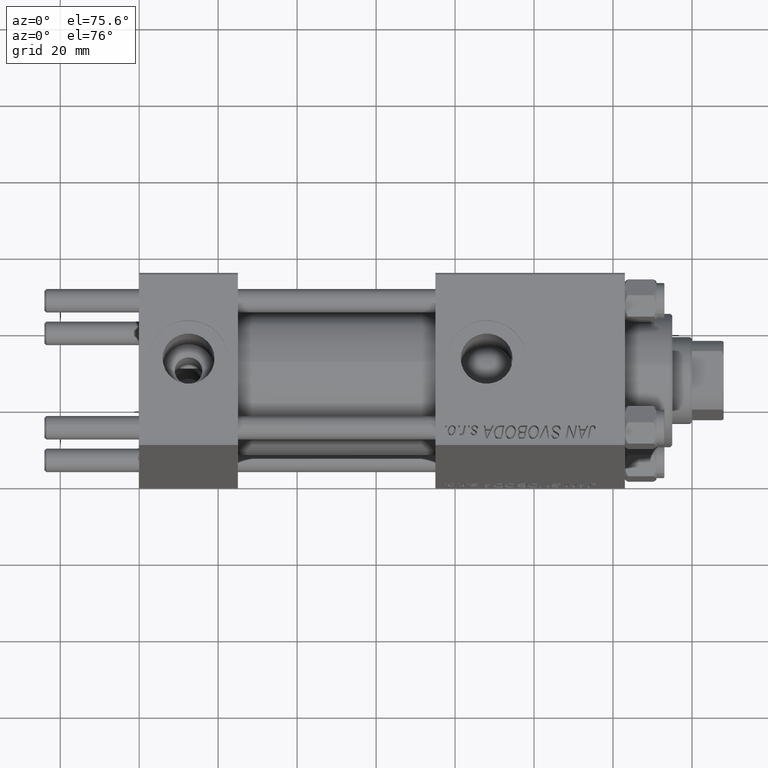
[diagram: clean part render]
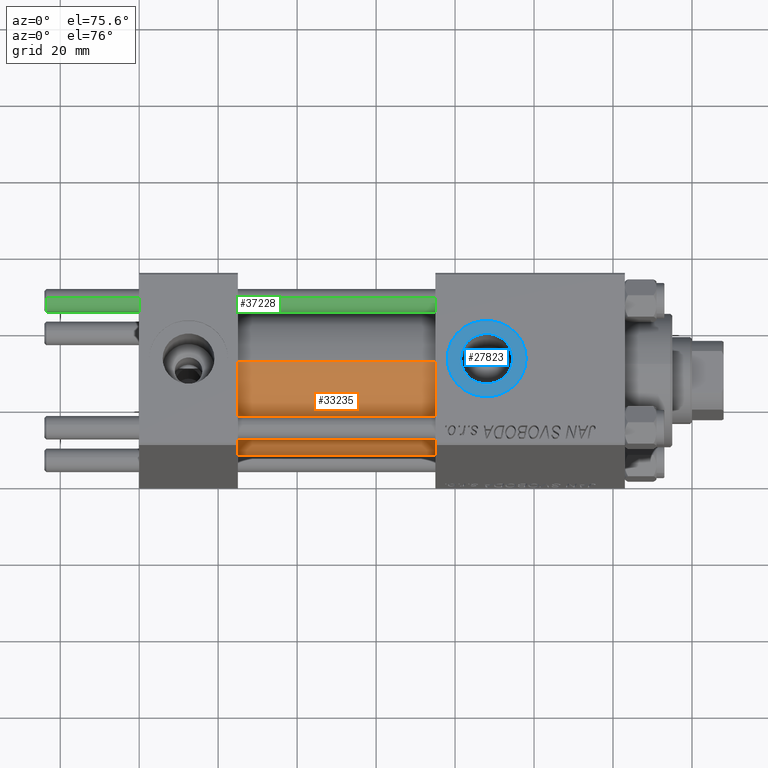
[diagram: same view with three faces highlighted in distinct colors, each labeled with its STEP entity id]
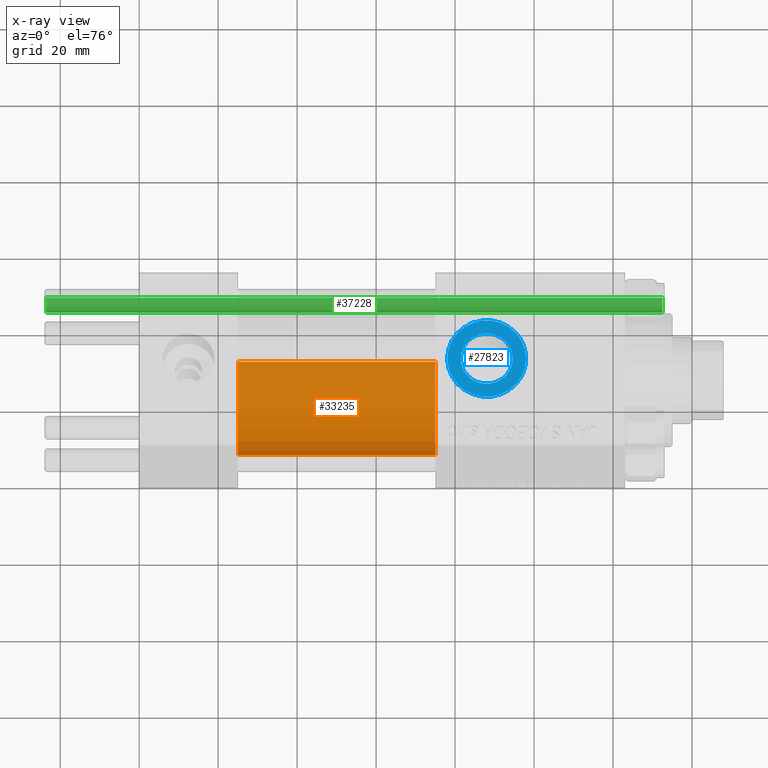
[diagram: x-ray of the same camera — body ghosted, the three highlighted faces saturated]
A machine part, auxiliary view with three faces highlighted in distinct colors.
The next image is the same camera in x-ray (body ghosted, the three faces saturated) — at least one of them is partly hidden behind the body in this view.
Their STEP definitions:

[orange] entity #33235 — the highlighted cylindrical surface (partial cylindrical patch) has radius 19 mm, axis along (-1, -0, -0).
#1293 = FACE_OUTER_BOUND ( 'NONE', #16891, .T. ) ;
#2273 = AXIS2_PLACEMENT_3D ( 'NONE', #21257, #4711, #28845 ) ;
#4245 = AXIS2_PLACEMENT_3D ( 'NONE', #37456, #41389, #22446 ) ;
#4711 = DIRECTION ( 'NONE',  ( -1.000000000000000000, -0.000000000000000000, -0.000000000000000000 ) ) ;
#4981 = CYLINDRICAL_SURFACE ( 'NONE', #2273, 19.00000000000000000 ) ;
#5444 = CARTESIAN_POINT ( 'NONE',  ( 75.00000000000001421, 0.000000000000000000, 0.000000000000000000 ) ) ;
#6064 = CARTESIAN_POINT ( 'NONE',  ( 75.00000000000001421, 0.000000000000000000, 19.00000000000000000 ) ) ;
#8062 = EDGE_CURVE ( 'NONE', #13216, #30739, #48617, .T. ) ;
#8562 = ORIENTED_EDGE ( 'NONE', *, *, #41206, .T. ) ;
#8734 = EDGE_CURVE ( 'NONE', #12951, #38926, #17674, .T. ) ;
#10637 = ORIENTED_EDGE ( 'NONE', *, *, #8734, .F. ) ;
#12951 = VERTEX_POINT ( 'NONE', #15720 ) ;
#13216 = VERTEX_POINT ( 'NONE', #35827 ) ;
#14475 = LINE ( 'NONE', #6064, #32554 ) ;
#15720 = CARTESIAN_POINT ( 'NONE',  ( 75.00000000000001421, 0.000000000000000000, 19.00000000000000000 ) ) ;
#16891 = EDGE_LOOP ( 'NONE', ( #47445, #10637, #8562, #19087 ) ) ;
#17091 = VECTOR ( 'NONE', #44902, 1000.000000000000000 ) ;
#17674 = CIRCLE ( 'NONE', #43585, 19.00000000000000000 ) ;
#19087 = ORIENTED_EDGE ( 'NONE', *, *, #8062, .T. ) ;
#19629 = CARTESIAN_POINT ( 'NONE',  ( 75.00000000000001421, 2.326828918379970970E-15, -19.00000000000000000 ) ) ;
#21257 = CARTESIAN_POINT ( 'NONE',  ( 75.00000000000001421, 0.000000000000000000, 0.000000000000000000 ) ) ;
#22446 = DIRECTION ( 'NONE',  ( 0.000000000000000000, 0.000000000000000000, 1.000000000000000000 ) ) ;
#25729 = EDGE_CURVE ( 'NONE', #38926, #30739, #32833, .T. ) ;
#28845 = DIRECTION ( 'NONE',  ( 0.000000000000000000, 0.000000000000000000, 1.000000000000000000 ) ) ;
#30739 = VERTEX_POINT ( 'NONE', #40675 ) ;
#32554 = VECTOR ( 'NONE', #49615, 1000.000000000000000 ) ;
#32833 = LINE ( 'NONE', #44109, #17091 ) ;
#33235 = ADVANCED_FACE ( 'NONE', ( #1293 ), #4981, .T. ) ;
#35827 = CARTESIAN_POINT ( 'NONE',  ( 25.00000000000000000, 0.000000000000000000, 19.00000000000000000 ) ) ;
#37456 = CARTESIAN_POINT ( 'NONE',  ( 25.00000000000000000, 0.000000000000000000, 0.000000000000000000 ) ) ;
#38926 = VERTEX_POINT ( 'NONE', #19629 ) ;
#40675 = CARTESIAN_POINT ( 'NONE',  ( 25.00000000000000000, 2.326828918379970970E-15, -19.00000000000000000 ) ) ;
#41206 = EDGE_CURVE ( 'NONE', #12951, #13216, #14475, .T. ) ;
#41389 = DIRECTION ( 'NONE',  ( 1.000000000000000000, -0.000000000000000000, 0.000000000000000000 ) ) ;
#43585 = AXIS2_PLACEMENT_3D ( 'NONE', #5444, #50020, #45825 ) ;
#44109 = CARTESIAN_POINT ( 'NONE',  ( 75.00000000000001421, 2.326828918379970970E-15, -19.00000000000000000 ) ) ;
#44902 = DIRECTION ( 'NONE',  ( -1.000000000000000000, -0.000000000000000000, -0.000000000000000000 ) ) ;
#45825 = DIRECTION ( 'NONE',  ( 0.000000000000000000, 0.000000000000000000, -1.000000000000000000 ) ) ;
#47445 = ORIENTED_EDGE ( 'NONE', *, *, #25729, .F. ) ;
#48617 = CIRCLE ( 'NONE', #4245, 19.00000000000000000 ) ;
#49615 = DIRECTION ( 'NONE',  ( -1.000000000000000000, -0.000000000000000000, -0.000000000000000000 ) ) ;
#50020 = DIRECTION ( 'NONE',  ( 1.000000000000000000, 0.000000000000000000, 0.000000000000000000 ) ) ;

[blue] entity #27823 — the highlighted planar face has unit normal (0, 0, 1).
#747 = VERTEX_POINT ( 'NONE', #22459 ) ;
#3373 = CIRCLE ( 'NONE', #13474, 10.00000000000000888 ) ;
#6433 = EDGE_CURVE ( 'NONE', #21382, #747, #48538, .T. ) ;
#6516 = CIRCLE ( 'NONE', #44165, 6.580000000000002736 ) ;
#8688 = EDGE_CURVE ( 'NONE', #32052, #24376, #3373, .T. ) ;
#8765 = ORIENTED_EDGE ( 'NONE', *, *, #25973, .T. ) ;
#9753 = DIRECTION ( 'NONE',  ( 0.000000000000000000, 0.000000000000000000, 1.000000000000000000 ) ) ;
#9892 = EDGE_LOOP ( 'NONE', ( #21094, #8765 ) ) ;
#10677 = DIRECTION ( 'NONE',  ( -0.000000000000000000, -0.000000000000000000, -1.000000000000000000 ) ) ;
#11191 = CARTESIAN_POINT ( 'NONE',  ( 88.00000000000001421, -5.204170427930420494E-15, 22.29999999999999716 ) ) ;
#12422 = CARTESIAN_POINT ( 'NONE',  ( 88.00000000000001421, -5.204170427930420494E-15, 22.29999999999999716 ) ) ;
#13192 = DIRECTION ( 'NONE',  ( 1.000000000000000000, 0.000000000000000000, 0.000000000000000000 ) ) ;
#13474 = AXIS2_PLACEMENT_3D ( 'NONE', #29837, #37180, #37698 ) ;
#13952 = DIRECTION ( 'NONE',  ( 1.000000000000000000, 0.000000000000000000, 0.000000000000000000 ) ) ;
#14486 = ORIENTED_EDGE ( 'NONE', *, *, #38253, .T. ) ;
#17824 = CARTESIAN_POINT ( 'NONE',  ( 98.00000000000001421, -5.204170427930420494E-15, 22.29999999999999716 ) ) ;
#21094 = ORIENTED_EDGE ( 'NONE', *, *, #8688, .T. ) ;
#21382 = VERTEX_POINT ( 'NONE', #23713 ) ;
#21977 = EDGE_LOOP ( 'NONE', ( #47780, #14486 ) ) ;
#22459 = CARTESIAN_POINT ( 'NONE',  ( 94.58000000000001251, -4.398352834091461452E-15, 22.29999999999999716 ) ) ;
#23698 = FACE_BOUND ( 'NONE', #21977, .T. ) ;
#23713 = CARTESIAN_POINT ( 'NONE',  ( 81.42000000000000171, -5.204170427930420494E-15, 22.29999999999999716 ) ) ;
#23727 = CARTESIAN_POINT ( 'NONE',  ( 78.00000000000000000, -3.979523628783065857E-15, 22.29999999999999716 ) ) ;
#24376 = VERTEX_POINT ( 'NONE', #23727 ) ;
#25754 = CARTESIAN_POINT ( 'NONE',  ( 88.00000000000001421, -5.204170427930420494E-15, 22.29999999999999716 ) ) ;
#25973 = EDGE_CURVE ( 'NONE', #24376, #32052, #48070, .T. ) ;
#26421 = AXIS2_PLACEMENT_3D ( 'NONE', #47551, #39921, #47815 ) ;
#26685 = DIRECTION ( 'NONE',  ( 1.000000000000000000, 0.000000000000000000, 0.000000000000000000 ) ) ;
#27823 = ADVANCED_FACE ( 'NONE', ( #23698, #43097 ), #35476, .T. ) ;
#28407 = DIRECTION ( 'NONE',  ( -0.000000000000000000, -0.000000000000000000, -1.000000000000000000 ) ) ;
#29837 = CARTESIAN_POINT ( 'NONE',  ( 88.00000000000001421, -5.204170427930420494E-15, 22.29999999999999716 ) ) ;
#32052 = VERTEX_POINT ( 'NONE', #17824 ) ;
#32625 = AXIS2_PLACEMENT_3D ( 'NONE', #12422, #28407, #13192 ) ;
#35476 = PLANE ( 'NONE',  #26421 ) ;
#37180 = DIRECTION ( 'NONE',  ( 0.000000000000000000, 0.000000000000000000, 1.000000000000000000 ) ) ;
#37185 = AXIS2_PLACEMENT_3D ( 'NONE', #25754, #9753, #13952 ) ;
#37698 = DIRECTION ( 'NONE',  ( 1.000000000000000000, 0.000000000000000000, 0.000000000000000000 ) ) ;
#38253 = EDGE_CURVE ( 'NONE', #747, #21382, #6516, .T. ) ;
#39921 = DIRECTION ( 'NONE',  ( 0.000000000000000000, 0.000000000000000000, 1.000000000000000000 ) ) ;
#43097 = FACE_OUTER_BOUND ( 'NONE', #9892, .T. ) ;
#44165 = AXIS2_PLACEMENT_3D ( 'NONE', #11191, #10677, #26685 ) ;
#47551 = CARTESIAN_POINT ( 'NONE',  ( 88.00000000000001421, -5.204170427930420494E-15, 22.29999999999999716 ) ) ;
#47780 = ORIENTED_EDGE ( 'NONE', *, *, #6433, .T. ) ;
#47815 = DIRECTION ( 'NONE',  ( 1.000000000000000000, 0.000000000000000000, -0.000000000000000000 ) ) ;
#48070 = CIRCLE ( 'NONE', #37185, 10.00000000000000888 ) ;
#48538 = CIRCLE ( 'NONE', #32625, 6.580000000000002736 ) ;

[green] entity #37228 — the highlighted cylindrical surface (edge-blend (fillet) strip) has radius 3 mm, axis along (-1, -0, -0).
#1107 = VERTEX_POINT ( 'NONE', #43008 ) ;
#1347 = LINE ( 'NONE', #17363, #19854 ) ;
#1580 = CARTESIAN_POINT ( 'NONE',  ( -3.000000000000000444, 0.000000000000000000, 157.0000000000000000 ) ) ;
#1702 = CIRCLE ( 'NONE', #34353, 3.000000000000000444 ) ;
#2011 = DIRECTION ( 'NONE',  ( -0.000000000000000000, -0.000000000000000000, -1.000000000000000000 ) ) ;
#2864 = ORIENTED_EDGE ( 'NONE', *, *, #46459, .T. ) ;
#4798 = EDGE_CURVE ( 'NONE', #13026, #44196, #8339, .T. ) ;
#6949 = EDGE_CURVE ( 'NONE', #48680, #1107, #1702, .T. ) ;
#8339 = CIRCLE ( 'NONE', #15037, 3.000000000000000444 ) ;
#8429 = DIRECTION ( 'NONE',  ( -0.000000000000000000, -0.000000000000000000, -1.000000000000000000 ) ) ;
#12513 = ORIENTED_EDGE ( 'NONE', *, *, #6949, .T. ) ;
#12578 = CARTESIAN_POINT ( 'NONE',  ( 3.000000000000000444, 3.673940397442060361E-16, 156.5000000000000284 ) ) ;
#13026 = VERTEX_POINT ( 'NONE', #12578 ) ;
#15037 = AXIS2_PLACEMENT_3D ( 'NONE', #50641, #23353, #27537 ) ;
#17363 = CARTESIAN_POINT ( 'NONE',  ( 3.000000000000000444, 3.673940397442060361E-16, 157.0000000000000000 ) ) ;
#17516 = CYLINDRICAL_SURFACE ( 'NONE', #50133, 3.000000000000000444 ) ;
#18474 = CARTESIAN_POINT ( 'NONE',  ( -3.000000000000000444, 0.000000000000000000, 156.5000000000000284 ) ) ;
#19854 = VECTOR ( 'NONE', #36495, 1000.000000000000000 ) ;
#21448 = CARTESIAN_POINT ( 'NONE',  ( 0.000000000000000000, 0.000000000000000000, 157.0000000000000000 ) ) ;
#23353 = DIRECTION ( 'NONE',  ( 0.000000000000000000, 0.000000000000000000, -1.000000000000000000 ) ) ;
#27537 = DIRECTION ( 'NONE',  ( 1.000000000000000000, 0.000000000000000000, 0.000000000000000000 ) ) ;
#28487 = DIRECTION ( 'NONE',  ( -0.000000000000000000, -0.000000000000000000, 1.000000000000000000 ) ) ;
#30631 = CARTESIAN_POINT ( 'NONE',  ( -3.000000000000000444, 0.000000000000000000, 0.4999999999999726885 ) ) ;
#33006 = EDGE_CURVE ( 'NONE', #13026, #1107, #1347, .T. ) ;
#33070 = LINE ( 'NONE', #1580, #42495 ) ;
#34353 = AXIS2_PLACEMENT_3D ( 'NONE', #40789, #28487, #48157 ) ;
#36495 = DIRECTION ( 'NONE',  ( -0.000000000000000000, -0.000000000000000000, -1.000000000000000000 ) ) ;
#37228 = ADVANCED_FACE ( 'NONE', ( #45571 ), #17516, .T. ) ;
#38062 = ORIENTED_EDGE ( 'NONE', *, *, #4798, .T. ) ;
#38083 = EDGE_LOOP ( 'NONE', ( #45058, #38062, #2864, #12513 ) ) ;
#40789 = CARTESIAN_POINT ( 'NONE',  ( 0.000000000000000000, 0.000000000000000000, 0.4999999999999726885 ) ) ;
#42495 = VECTOR ( 'NONE', #8429, 1000.000000000000000 ) ;
#43008 = CARTESIAN_POINT ( 'NONE',  ( 3.000000000000000444, 3.673940397442060361E-16, 0.4999999999999726885 ) ) ;
#44196 = VERTEX_POINT ( 'NONE', #18474 ) ;
#45058 = ORIENTED_EDGE ( 'NONE', *, *, #33006, .F. ) ;
#45571 = FACE_OUTER_BOUND ( 'NONE', #38083, .T. ) ;
#46086 = DIRECTION ( 'NONE',  ( -1.000000000000000000, 0.000000000000000000, 0.000000000000000000 ) ) ;
#46459 = EDGE_CURVE ( 'NONE', #44196, #48680, #33070, .T. ) ;
#48157 = DIRECTION ( 'NONE',  ( 1.000000000000000000, 0.000000000000000000, 0.000000000000000000 ) ) ;
#48680 = VERTEX_POINT ( 'NONE', #30631 ) ;
#50133 = AXIS2_PLACEMENT_3D ( 'NONE', #21448, #2011, #46086 ) ;
#50641 = CARTESIAN_POINT ( 'NONE',  ( 0.000000000000000000, 0.000000000000000000, 156.5000000000000284 ) ) ;